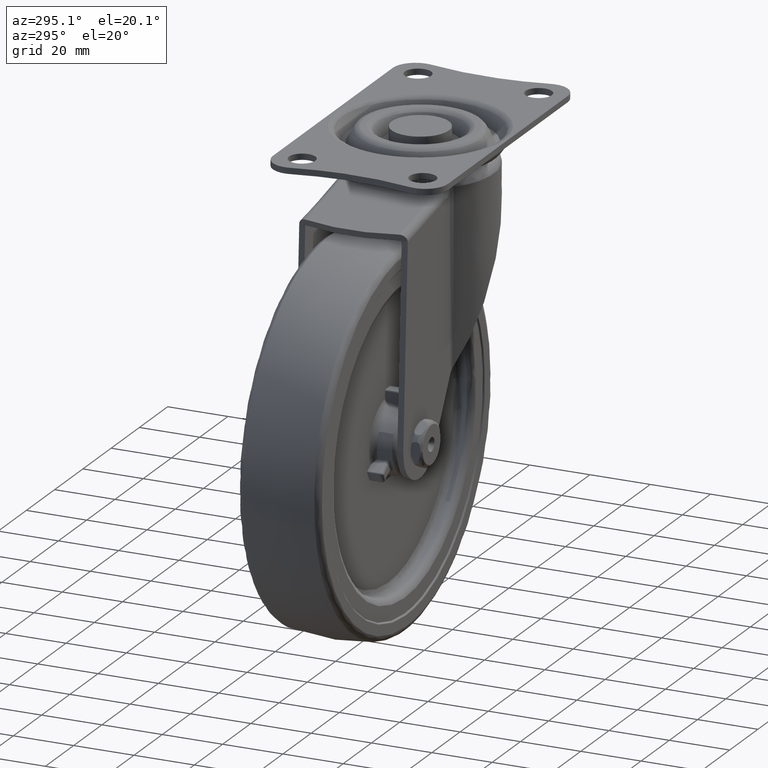
[diagram: clean part render]
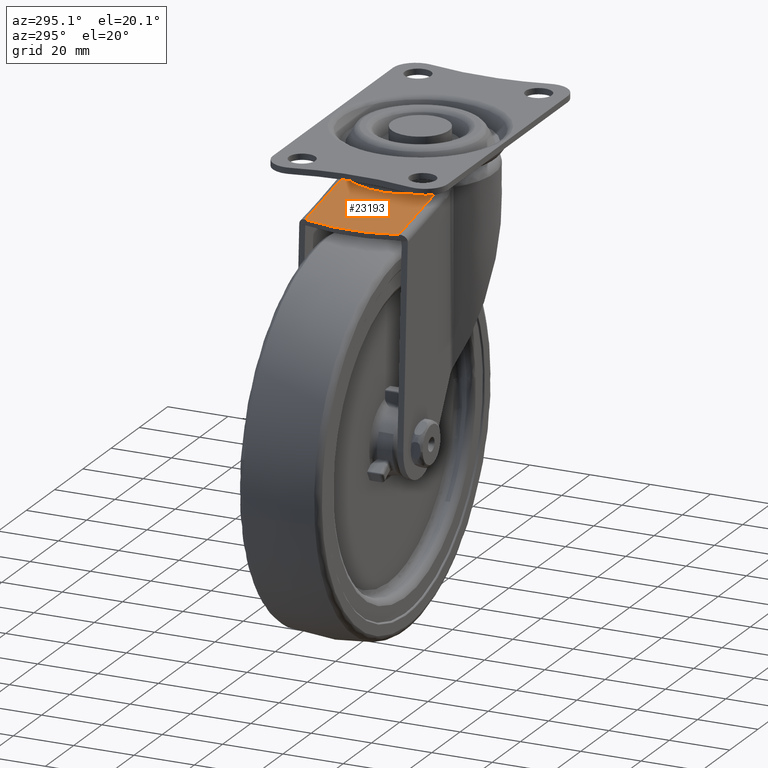
[diagram: same view with one face highlighted and labeled with its STEP entity id]
A machine part, auxiliary view. The second image highlights one B-rep face of the part: STEP entity #23193.
In plain terms, the highlighted face is a freeform B-spline surface patch.
Its self-contained STEP definition (entity closure, byte-faithful):
#20983=CARTESIAN_POINT('',(-21.029582153093649,-15.500000000000000,-9.517543568691819));
#20984=VERTEX_POINT('',#20983);
#21143=CARTESIAN_POINT('',(-48.364600978941901,-15.500000000000000,-14.337441782040560));
#21144=VERTEX_POINT('',#21143);
#21145=CARTESIAN_POINT('',(-48.364600978941901,-15.500000000000000,-14.337441782040560));
#21146=CARTESIAN_POINT('',(-21.029582153093649,-15.500000000000000,-9.517543568691819));
#21147=QUASI_UNIFORM_CURVE('',1,(#21145,#21146),.UNSPECIFIED.,.F.,.U.);
#21148=EDGE_CURVE('',#21144,#20984,#21147,.T.);
#21249=CARTESIAN_POINT('',(-21.029582153093699,15.500000000000000,-9.517543568691830));
#21250=VERTEX_POINT('',#21249);
#21443=CARTESIAN_POINT('',(-48.364600978941901,15.500000000000000,-14.337441782040560));
#21444=VERTEX_POINT('',#21443);
#21475=CARTESIAN_POINT('',(-21.029582153093699,15.500000000000000,-9.517543568691830));
#21476=CARTESIAN_POINT('',(-48.364600978941901,15.500000000000000,-14.337441782040560));
#21477=QUASI_UNIFORM_CURVE('',1,(#21475,#21476),.UNSPECIFIED.,.F.,.U.);
#21478=EDGE_CURVE('',#21250,#21444,#21477,.T.);
#22529=CARTESIAN_POINT('',(-21.029582153093671,-15.500000000000020,-9.517543568691830));
#22530=CARTESIAN_POINT('',(-21.248034106933911,-15.228501144418740,-9.556062517177850));
#22531=CARTESIAN_POINT('',(-21.460472929171900,-14.951829769346540,-9.593521189011007));
#22532=CARTESIAN_POINT('',(-21.873396005148471,-14.388203652288031,-9.666330621074318));
#22533=CARTESIAN_POINT('',(-22.073542465936850,-14.101695107383540,-9.701621819332058));
#22534=CARTESIAN_POINT('',(-22.460702681647501,-13.520376545322680,-9.769888566974419));
#22535=CARTESIAN_POINT('',(-22.647825931645460,-13.225417576279931,-9.802883423282635));
#22536=CARTESIAN_POINT('',(-23.009268790256439,-12.626973561797360,-9.866615509934771));
#22537=CARTESIAN_POINT('',(-23.183789072526270,-12.323086626083830,-9.897388124435777));
#22538=CARTESIAN_POINT('',(-23.685369451678440,-11.404013450943401,-9.985830220954114));
#22539=CARTESIAN_POINT('',(-23.991340812441361,-10.780191258787671,-10.039781192214560));
#22540=CARTESIAN_POINT('',(-24.548680238429078,-9.511204175348317,-10.138055106736500));
#22541=CARTESIAN_POINT('',(-24.800041063211442,-8.866036454005041,-10.182376773313459));
#22542=CARTESIAN_POINT('',(-25.248938354048260,-7.554662773923483,-10.261529425955340));
#22543=CARTESIAN_POINT('',(-25.446473668174932,-6.888456364933110,-10.296360208904440));
#22544=CARTESIAN_POINT('',(-25.702018285791929,-5.873215601712296,-10.341419590561721));
#22545=CARTESIAN_POINT('',(-25.780435382120860,-5.531955650915373,-10.355246631431889));
#22546=CARTESIAN_POINT('',(-25.923311715963450,-4.844824516291650,-10.380439567665270));
#22547=CARTESIAN_POINT('',(-25.987462051275820,-4.500478974223358,-10.391750995271289));
#22548=CARTESIAN_POINT('',(-26.158341033116990,-3.465133618187316,-10.421881550677970));
#22549=CARTESIAN_POINT('',(-26.243539550781382,-2.771829558194391,-10.436904338322160));
#22550=CARTESIAN_POINT('',(-26.357002474922261,-1.379128107312680,-10.456910900191829));
#22551=CARTESIAN_POINT('',(-26.385267195588760,-0.679558570016548,-10.461894729817461));
#22552=CARTESIAN_POINT('',(-26.384017353069730,0.725069898647231,-10.461674349002550));
#22553=CARTESIAN_POINT('',(-26.354526380876361,1.422389278134519,-10.456474298287739));
#22554=CARTESIAN_POINT('',(-26.239537044666911,2.807336763681357,-10.436198588961130));
#22555=CARTESIAN_POINT('',(-26.154034694315250,3.494964179962881,-10.421122227451280));
#22556=CARTESIAN_POINT('',(-25.927389532490292,4.860591231177309,-10.381158596275320));
#22557=CARTESIAN_POINT('',(-25.786248048655171,5.538591095838898,-10.356271560707480));
#22558=CARTESIAN_POINT('',(-25.447391634581731,6.884801604132497,-10.296522071044430));
#22559=CARTESIAN_POINT('',(-25.249683799628968,7.553013475501589,-10.261660868038680));
#22560=CARTESIAN_POINT('',(-24.965718159349240,8.381905266562518,-10.211590096514559));
#22561=CARTESIAN_POINT('',(-24.907143690511720,8.547165233335482,-10.201261843971681));
#22562=CARTESIAN_POINT('',(-24.786807392446761,8.875615225509153,-10.180043321616180));
#22563=CARTESIAN_POINT('',(-24.601364100602410,9.365645709356350,-10.147344687064921));
#22564=CARTESIAN_POINT('',(-24.401181775838261,9.847784178045814,-10.112047165024720));
#22565=CARTESIAN_POINT('',(-23.981256569361989,10.801587415232380,-10.038003069232060));
#22566=CARTESIAN_POINT('',(-23.675267073946060,11.423513465941960,-9.984048900345082));
#22567=CARTESIAN_POINT('',(-23.010711385403201,12.639213374640150,-9.866869878216523));
#22568=CARTESIAN_POINT('',(-22.652151626376281,13.232990677767610,-9.803646159479653));
#22569=CARTESIAN_POINT('',(-22.169908457711429,13.956983730773270,-9.718613732692024));
#22570=CARTESIAN_POINT('',(-22.071753890613788,14.100868899356520,-9.701306445449973));
#22571=CARTESIAN_POINT('',(-21.871987312377211,14.386787948115581,-9.666082230692199));
#22572=CARTESIAN_POINT('',(-21.770297766914801,14.528926818492650,-9.648151631792191));
#22573=CARTESIAN_POINT('',(-21.460551505492582,14.951727437268680,-9.593535044127409));
#22574=CARTESIAN_POINT('',(-21.248074506581350,15.228450934485370,-9.556069640721081));
#22575=CARTESIAN_POINT('',(-21.029582153093688,15.499999999999989,-9.517543568691831));
#22576=B_SPLINE_CURVE_WITH_KNOTS('',3,(#22529,#22530,#22531,#22532,#22533,#22534,#22535,#22536,#22537,#22538,#22539,#22540,#22541,#22542,#22543,#22544,#22545,#22546,#22547,#22548,#22549,#22550,#22551,#22552,#22553,#22554,#22555,#22556,#22557,#22558,#22559,#22560,#22561,#22562,#22563,#22564,#22565,#22566,#22567,#22568,#22569,#22570,#22571,#22572,#22573,#22574,#22575),.UNSPECIFIED.,.F.,.U.,(4,2,2,2,2,2,2,2,2,2,2,2,2,2,2,2,2,1,2,2,2,2,2,4),(0.0,0.031250000000000,0.062500000000000,0.093750000000000,0.125000000000000,0.187500000000000,0.250000000000000,0.312500000000000,0.343750000000000,0.375000000000000,0.437500000000000,0.500000000000001,0.562500000000001,0.625000000000001,0.687500000000001,0.750000000000001,0.765625000000001,0.781250000000001,0.812500000000001,0.875000000000001,0.937500000000001,0.953125000000000,0.968750000000000,1.0),.UNSPECIFIED.);
#22577=EDGE_CURVE('',#20984,#21250,#22576,.T.);
#22601=CARTESIAN_POINT('',(-48.364600978941908,-15.500000000000000,-14.337441782040580));
#22602=CARTESIAN_POINT('',(-52.030094684889306,-1.734723E-014,-14.983766801126741));
#22603=CARTESIAN_POINT('',(-48.364600978941908,15.499999999999980,-14.337441782040580));
#22611=(BOUNDED_CURVE()B_SPLINE_CURVE(2,(#22601,#22602,#22603),.UNSPECIFIED.,.F.,.U.)CURVE()GEOMETRIC_REPRESENTATION_ITEM()QUASI_UNIFORM_CURVE()RATIONAL_B_SPLINE_CURVE((1.0,0.972358256356908,1.0))REPRESENTATION_ITEM(''));
#22612=EDGE_CURVE('',#21144,#21444,#22611,.T.);
#23182=CARTESIAN_POINT('',(-19.573936211998419,-17.048449939915990,-9.260874081267920));
#23183=CARTESIAN_POINT('',(-51.627308101400637,-17.048449939915990,-14.912744705020399));
#23184=CARTESIAN_POINT('',(-19.573936211998419,17.048450771400780,-9.260874081267920));
#23185=CARTESIAN_POINT('',(-51.627308101400637,17.048450771400780,-14.912744705020399));
#23186=B_SPLINE_SURFACE_WITH_KNOTS('',1,1,((#23182,#23184),(#23183,#23185)),.UNSPECIFIED.,.F.,.F.,.U.,(2,2),(2,2),(0.0,32.547846181090947),(0.0,34.096900711316771),.UNSPECIFIED.);
#23187=ORIENTED_EDGE('',*,*,#22577,.T.);
#23188=ORIENTED_EDGE('',*,*,#21478,.T.);
#23189=ORIENTED_EDGE('',*,*,#22612,.F.);
#23190=ORIENTED_EDGE('',*,*,#21148,.T.);
#23191=EDGE_LOOP('',(#23187,#23188,#23189,#23190));
#23192=FACE_OUTER_BOUND('',#23191,.T.);
#23193=ADVANCED_FACE('',(#23192),#23186,.F.);